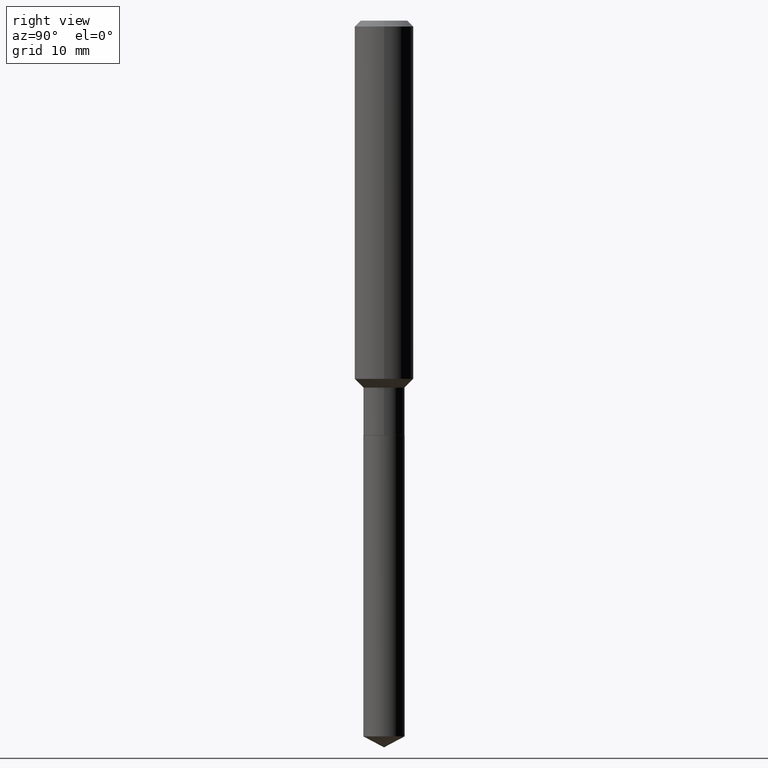
[diagram: clean part render]
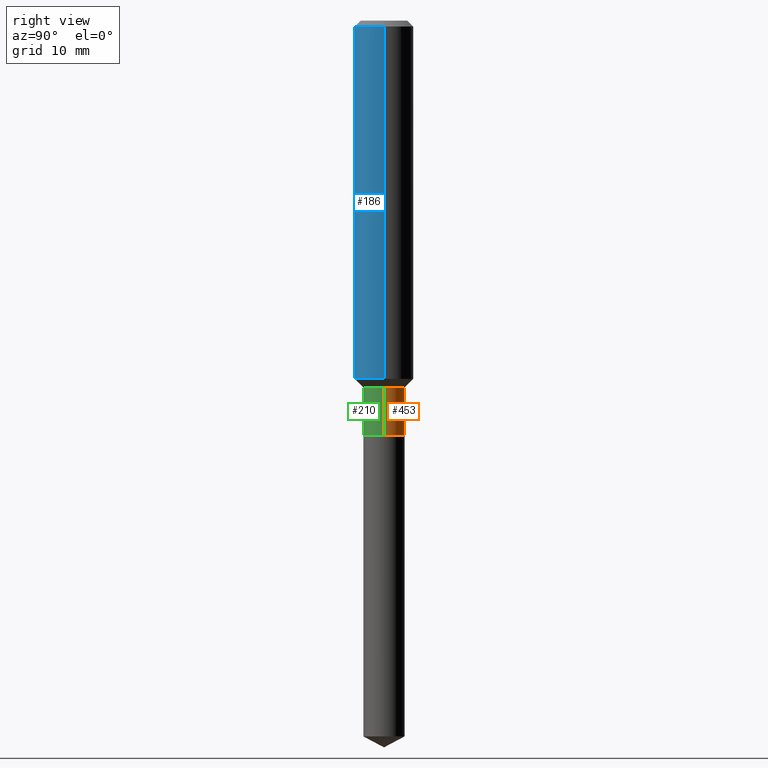
[diagram: same view with three faces highlighted in distinct colors, each labeled with its STEP entity id]
A machine part, right view with three faces highlighted in distinct colors.
Their STEP definitions:

[orange] entity #453 — the highlighted cylindrical surface (edge-blend (fillet) strip) has radius 2.1006 mm, axis along (-0, 0, 1).
#6 = DIRECTION ( 'NONE',  ( 1.000000000000000000, -6.982962677686267499E-15, 4.876176775795936353E-29 ) ) ;
#22 = EDGE_CURVE ( 'NONE', #346, #85, #257, .T. ) ;
#31 = CARTESIAN_POINT ( 'NONE',  ( 0.000000000000000000, 0.000000000000000000, 0.000000000000000000 ) ) ;
#39 = DIRECTION ( 'NONE',  ( 1.000000000000000000, -6.982962677686272233E-15, 0.000000000000000000 ) ) ;
#67 = CARTESIAN_POINT ( 'NONE',  ( 0.08270000000000000961, -6.376841517263119883E-15, -1.661000000000000032 ) ) ;
#69 = LINE ( 'NONE', #490, #308 ) ;
#75 = FACE_OUTER_BOUND ( 'NONE', #132, .T. ) ;
#82 = ORIENTED_EDGE ( 'NONE', *, *, #150, .F. ) ;
#85 = VERTEX_POINT ( 'NONE', #344 ) ;
#90 = VERTEX_POINT ( 'NONE', #407 ) ;
#98 = ORIENTED_EDGE ( 'NONE', *, *, #323, .T. ) ;
#110 = DIRECTION ( 'NONE',  ( 1.000000000000000000, -6.982962677686262766E-15, 0.000000000000000000 ) ) ;
#118 = DIRECTION ( 'NONE',  ( -2.445468806185136597E-29, 3.491481338843145583E-15, 1.000000000000000000 ) ) ;
#130 = AXIS2_PLACEMENT_3D ( 'NONE', #459, #481, #39 ) ;
#132 = EDGE_LOOP ( 'NONE', ( #164, #98, #82, #316 ) ) ;
#150 = EDGE_CURVE ( 'NONE', #90, #387, #197, .T. ) ;
#164 = ORIENTED_EDGE ( 'NONE', *, *, #22, .T. ) ;
#197 = CIRCLE ( 'NONE', #475, 0.08269999999999998186 ) ;
#198 = VECTOR ( 'NONE', #287, 39.37007874015748143 ) ;
#255 = CYLINDRICAL_SURFACE ( 'NONE', #283, 0.08269999999999999574 ) ;
#257 = CIRCLE ( 'NONE', #130, 0.08270000000000000961 ) ;
#283 = AXIS2_PLACEMENT_3D ( 'NONE', #31, #118, #6 ) ;
#287 = DIRECTION ( 'NONE',  ( -2.445468806185136877E-29, 3.491481338843145188E-15, 1.000000000000000000 ) ) ;
#291 = LINE ( 'NONE', #412, #198 ) ;
#308 = VECTOR ( 'NONE', #376, 39.37007874015748143 ) ;
#316 = ORIENTED_EDGE ( 'NONE', *, *, #374, .F. ) ;
#323 = EDGE_CURVE ( 'NONE', #85, #387, #291, .T. ) ;
#341 = CARTESIAN_POINT ( 'NONE',  ( -0.08269999999999998186, -4.880564656355590136E-15, -1.471300000000000274 ) ) ;
#344 = CARTESIAN_POINT ( 'NONE',  ( -0.08270000000000000961, -4.880564656355590136E-15, -1.661000000000000032 ) ) ;
#346 = VERTEX_POINT ( 'NONE', #67 ) ;
#374 = EDGE_CURVE ( 'NONE', #346, #90, #69, .T. ) ;
#376 = DIRECTION ( 'NONE',  ( -2.445468806185136877E-29, 3.491481338843145188E-15, 1.000000000000000000 ) ) ;
#387 = VERTEX_POINT ( 'NONE', #341 ) ;
#407 = CARTESIAN_POINT ( 'NONE',  ( 0.08269999999999998186, -5.714507507284574607E-15, -1.471300000000000274 ) ) ;
#412 = CARTESIAN_POINT ( 'NONE',  ( -0.08269999999999999574, 5.876188424736028234E-16, -4.067959319640806904E-30 ) ) ;
#451 = DIRECTION ( 'NONE',  ( -2.445468806185136597E-29, 3.491481338843145583E-15, 1.000000000000000000 ) ) ;
#453 = ADVANCED_FACE ( 'NONE', ( #75 ), #255, .T. ) ;
#459 = CARTESIAN_POINT ( 'NONE',  ( 4.061923687073511860E-29, -5.799350503818465203E-15, -1.661000000000000032 ) ) ;
#475 = AXIS2_PLACEMENT_3D ( 'NONE', #484, #451, #110 ) ;
#481 = DIRECTION ( 'NONE',  ( -2.445468806185136597E-29, 3.491481338843145583E-15, 1.000000000000000000 ) ) ;
#484 = CARTESIAN_POINT ( 'NONE',  ( 3.598018254540192216E-29, -5.137016493839921505E-15, -1.471300000000000274 ) ) ;
#490 = CARTESIAN_POINT ( 'NONE',  ( 0.08269999999999999574, -5.774910134446542854E-16, 4.032598193583239271E-30 ) ) ;

[blue] entity #186 — the highlighted cylindrical surface (edge-blend (fillet) strip) has radius 2.9997 mm, axis along (-0, 0, 1).
#4 = CARTESIAN_POINT ( 'NONE',  ( -0.1181000000000000799, 8.391509709326788873E-16, -5.809262341591047988E-30 ) ) ;
#7 = VECTOR ( 'NONE', #84, 39.37007874015748143 ) ;
#10 = EDGE_LOOP ( 'NONE', ( #465, #201, #277, #60 ) ) ;
#26 = DIRECTION ( 'NONE',  ( 1.000000000000000000, -6.982962677686266711E-15, 0.000000000000000000 ) ) ;
#33 = CARTESIAN_POINT ( 'NONE',  ( 0.000000000000000000, 0.000000000000000000, 0.000000000000000000 ) ) ;
#38 = CARTESIAN_POINT ( 'NONE',  ( 0.1181000000000000799, -8.246878922347486570E-16, 5.758764772215004644E-30 ) ) ;
#49 = EDGE_CURVE ( 'NONE', #470, #370, #117, .T. ) ;
#60 = ORIENTED_EDGE ( 'NONE', *, *, #111, .F. ) ;
#73 = CARTESIAN_POINT ( 'NONE',  ( 0.1180999999999999966, -9.071566814582237199E-16, -0.02362000000000014088 ) ) ;
#79 = VECTOR ( 'NONE', #155, 39.37007874015748143 ) ;
#84 = DIRECTION ( 'NONE',  ( -2.445468806185136877E-29, 3.491481338843145188E-15, 1.000000000000000000 ) ) ;
#108 = AXIS2_PLACEMENT_3D ( 'NONE', #263, #372, #26 ) ;
#111 = EDGE_CURVE ( 'NONE', #370, #430, #121, .T. ) ;
#117 = LINE ( 'NONE', #4, #7 ) ;
#121 = CIRCLE ( 'NONE', #108, 0.1180999999999999966 ) ;
#151 = CARTESIAN_POINT ( 'NONE',  ( 3.511448658801237790E-29, -5.013418054444873531E-15, -1.435900000000000176 ) ) ;
#155 = DIRECTION ( 'NONE',  ( -2.445468806185136877E-29, 3.491481338843145188E-15, 1.000000000000000000 ) ) ;
#159 = AXIS2_PLACEMENT_3D ( 'NONE', #33, #268, #184 ) ;
#163 = VERTEX_POINT ( 'NONE', #262 ) ;
#184 = DIRECTION ( 'NONE',  ( 1.000000000000000000, -6.982962677686266711E-15, 4.876176775795936353E-29 ) ) ;
#186 = ADVANCED_FACE ( 'NONE', ( #360 ), #477, .T. ) ;
#201 = ORIENTED_EDGE ( 'NONE', *, *, #352, .T. ) ;
#213 = CIRCLE ( 'NONE', #236, 0.1181000000000001632 ) ;
#236 = AXIS2_PLACEMENT_3D ( 'NONE', #151, #334, #450 ) ;
#262 = CARTESIAN_POINT ( 'NONE',  ( 0.1181000000000001632, -5.838105946679621793E-15, -1.435900000000000176 ) ) ;
#263 = CARTESIAN_POINT ( 'NONE',  ( 5.776197320209327532E-31, -8.246878922347559293E-17, -0.02362000000000014088 ) ) ;
#268 = DIRECTION ( 'NONE',  ( -2.445468806185136597E-29, 3.491481338843145583E-15, 1.000000000000000000 ) ) ;
#277 = ORIENTED_EDGE ( 'NONE', *, *, #487, .T. ) ;
#334 = DIRECTION ( 'NONE',  ( -2.445468806185136597E-29, 3.491481338843145583E-15, 1.000000000000000000 ) ) ;
#352 = EDGE_CURVE ( 'NONE', #470, #163, #213, .T. ) ;
#360 = FACE_OUTER_BOUND ( 'NONE', #10, .T. ) ;
#370 = VERTEX_POINT ( 'NONE', #408 ) ;
#372 = DIRECTION ( 'NONE',  ( -2.445468806185136597E-29, 3.491481338843145583E-15, 1.000000000000000000 ) ) ;
#378 = CARTESIAN_POINT ( 'NONE',  ( -0.1181000000000001632, -4.174267083512193756E-15, -1.435900000000000176 ) ) ;
#385 = LINE ( 'NONE', #38, #79 ) ;
#408 = CARTESIAN_POINT ( 'NONE',  ( -0.1180999999999999966, -1.708792450901494916E-15, -0.02362000000000014088 ) ) ;
#430 = VERTEX_POINT ( 'NONE', #73 ) ;
#450 = DIRECTION ( 'NONE',  ( 1.000000000000000000, -6.982962677686270655E-15, 0.000000000000000000 ) ) ;
#465 = ORIENTED_EDGE ( 'NONE', *, *, #49, .F. ) ;
#470 = VERTEX_POINT ( 'NONE', #378 ) ;
#477 = CYLINDRICAL_SURFACE ( 'NONE', #159, 0.1181000000000000799 ) ;
#487 = EDGE_CURVE ( 'NONE', #163, #430, #385, .T. ) ;

[green] entity #210 — the highlighted cylindrical surface (edge-blend (fillet) strip) has radius 2.1006 mm, axis along (-0, 0, 1).
#67 = CARTESIAN_POINT ( 'NONE',  ( 0.08270000000000000961, -6.376841517263119883E-15, -1.661000000000000032 ) ) ;
#69 = LINE ( 'NONE', #490, #308 ) ;
#85 = VERTEX_POINT ( 'NONE', #344 ) ;
#90 = VERTEX_POINT ( 'NONE', #407 ) ;
#92 = EDGE_LOOP ( 'NONE', ( #205, #403, #396, #394 ) ) ;
#93 = DIRECTION ( 'NONE',  ( -2.445468806185136597E-29, 3.491481338843145583E-15, 1.000000000000000000 ) ) ;
#138 = CARTESIAN_POINT ( 'NONE',  ( 0.000000000000000000, 0.000000000000000000, 0.000000000000000000 ) ) ;
#169 = CYLINDRICAL_SURFACE ( 'NONE', #258, 0.08269999999999999574 ) ;
#198 = VECTOR ( 'NONE', #287, 39.37007874015748143 ) ;
#205 = ORIENTED_EDGE ( 'NONE', *, *, #323, .F. ) ;
#210 = ADVANCED_FACE ( 'NONE', ( #369 ), #169, .T. ) ;
#221 = CARTESIAN_POINT ( 'NONE',  ( 3.598018254540192216E-29, -5.137016493839921505E-15, -1.471300000000000274 ) ) ;
#223 = DIRECTION ( 'NONE',  ( 1.000000000000000000, -6.982962677686272233E-15, 0.000000000000000000 ) ) ;
#258 = AXIS2_PLACEMENT_3D ( 'NONE', #138, #93, #329 ) ;
#259 = CARTESIAN_POINT ( 'NONE',  ( 4.061923687073511860E-29, -5.799350503818465203E-15, -1.661000000000000032 ) ) ;
#287 = DIRECTION ( 'NONE',  ( -2.445468806185136877E-29, 3.491481338843145188E-15, 1.000000000000000000 ) ) ;
#291 = LINE ( 'NONE', #412, #198 ) ;
#298 = DIRECTION ( 'NONE',  ( 1.000000000000000000, -6.982962677686262766E-15, 0.000000000000000000 ) ) ;
#304 = DIRECTION ( 'NONE',  ( -2.445468806185136597E-29, 3.491481338843145583E-15, 1.000000000000000000 ) ) ;
#308 = VECTOR ( 'NONE', #376, 39.37007874015748143 ) ;
#323 = EDGE_CURVE ( 'NONE', #85, #387, #291, .T. ) ;
#329 = DIRECTION ( 'NONE',  ( 1.000000000000000000, -6.982962677686267499E-15, 4.876176775795936353E-29 ) ) ;
#339 = DIRECTION ( 'NONE',  ( -2.445468806185136597E-29, 3.491481338843145583E-15, 1.000000000000000000 ) ) ;
#341 = CARTESIAN_POINT ( 'NONE',  ( -0.08269999999999998186, -4.880564656355590136E-15, -1.471300000000000274 ) ) ;
#344 = CARTESIAN_POINT ( 'NONE',  ( -0.08270000000000000961, -4.880564656355590136E-15, -1.661000000000000032 ) ) ;
#346 = VERTEX_POINT ( 'NONE', #67 ) ;
#368 = AXIS2_PLACEMENT_3D ( 'NONE', #221, #339, #298 ) ;
#369 = FACE_OUTER_BOUND ( 'NONE', #92, .T. ) ;
#374 = EDGE_CURVE ( 'NONE', #346, #90, #69, .T. ) ;
#376 = DIRECTION ( 'NONE',  ( -2.445468806185136877E-29, 3.491481338843145188E-15, 1.000000000000000000 ) ) ;
#387 = VERTEX_POINT ( 'NONE', #341 ) ;
#394 = ORIENTED_EDGE ( 'NONE', *, *, #461, .F. ) ;
#396 = ORIENTED_EDGE ( 'NONE', *, *, #374, .T. ) ;
#403 = ORIENTED_EDGE ( 'NONE', *, *, #415, .T. ) ;
#405 = CIRCLE ( 'NONE', #413, 0.08270000000000000961 ) ;
#407 = CARTESIAN_POINT ( 'NONE',  ( 0.08269999999999998186, -5.714507507284574607E-15, -1.471300000000000274 ) ) ;
#412 = CARTESIAN_POINT ( 'NONE',  ( -0.08269999999999999574, 5.876188424736028234E-16, -4.067959319640806904E-30 ) ) ;
#413 = AXIS2_PLACEMENT_3D ( 'NONE', #259, #304, #223 ) ;
#415 = EDGE_CURVE ( 'NONE', #85, #346, #405, .T. ) ;
#461 = EDGE_CURVE ( 'NONE', #387, #90, #476, .T. ) ;
#476 = CIRCLE ( 'NONE', #368, 0.08269999999999998186 ) ;
#490 = CARTESIAN_POINT ( 'NONE',  ( 0.08269999999999999574, -5.774910134446542854E-16, 4.032598193583239271E-30 ) ) ;